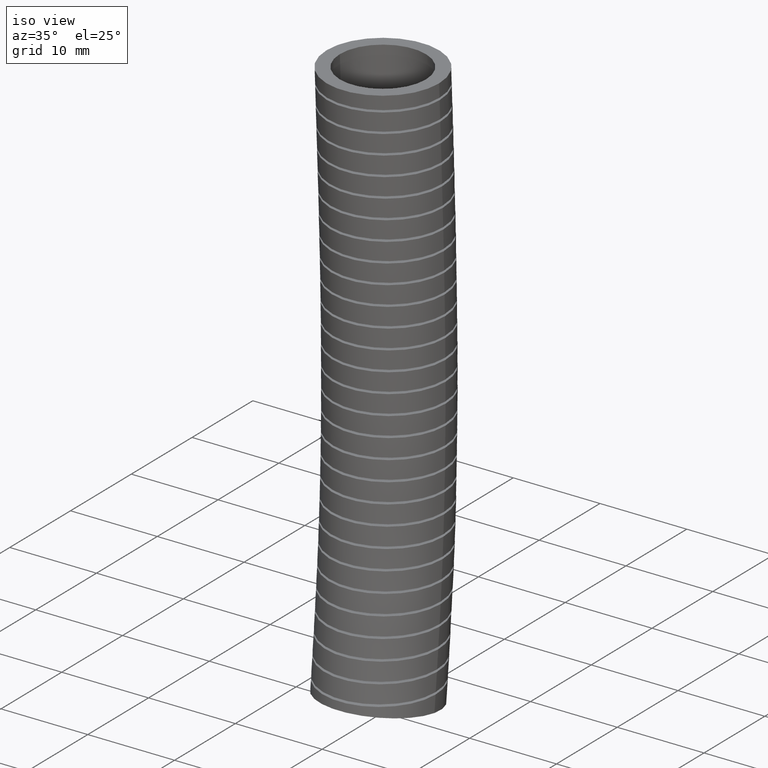
[diagram: clean part render]
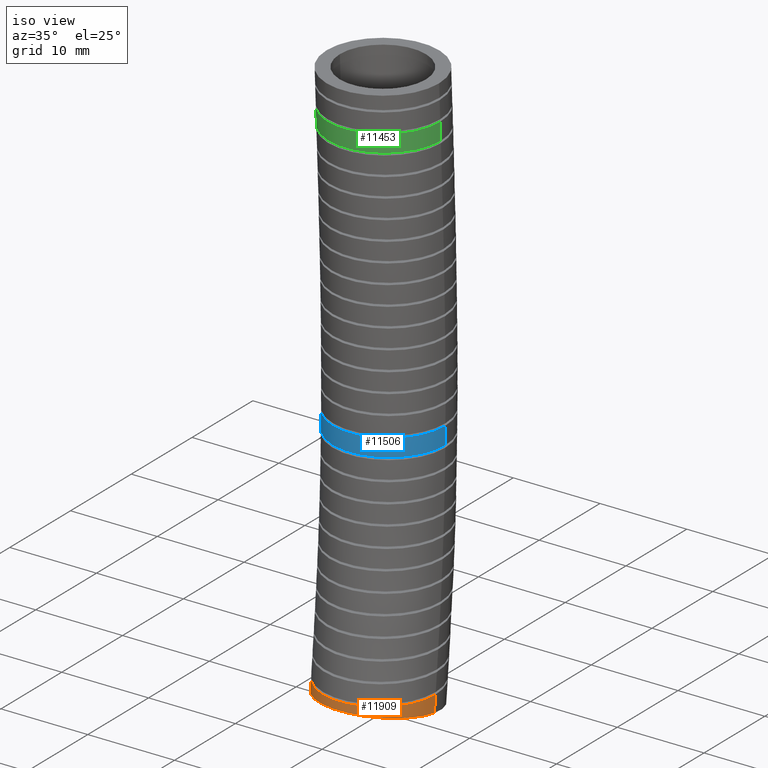
[diagram: same view with three faces highlighted in distinct colors, each labeled with its STEP entity id]
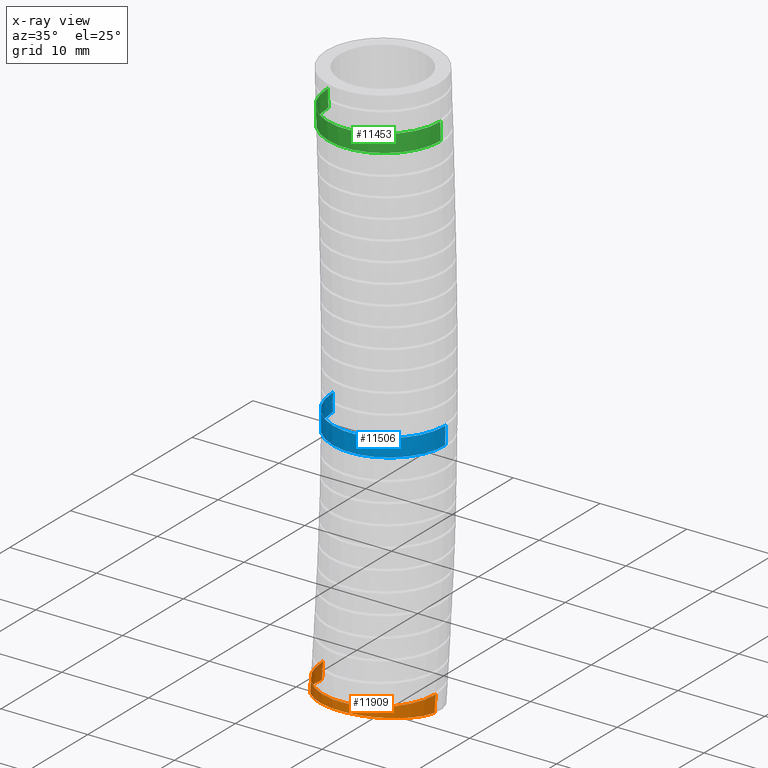
[diagram: x-ray of the same camera — body ghosted, the three highlighted faces saturated]
A machine part, iso view with three faces highlighted in distinct colors.
The next image is the same camera in x-ray (body ghosted, the three faces saturated) — at least one of them is partly hidden behind the body in this view.
Their STEP definitions:

[orange] entity #11909 — the highlighted face is a freeform B-spline surface patch.
#3720 = CARTESIAN_POINT ( 'NONE',  ( -0.2550000000000000600, -0.02281180567307332700, -2.496989538721974300 ) ) ;
#3801 = CARTESIAN_POINT ( 'NONE',  ( -0.2550000000000000000, -0.02759958849167231900, -2.545663348084823900 ) ) ;
#3802 = CARTESIAN_POINT ( 'NONE',  ( -0.2550000000000000000, -0.02519917698334464600, -2.521326696169647900 ) ) ;
#3803 = CARTESIAN_POINT ( 'NONE',  ( -0.2550000000000000600, -0.02281180567307332700, -2.496989538721974300 ) ) ;
#3804 = CARTESIAN_POINT ( 'NONE',  ( -0.2550000000000000600, -0.03000000000000007900, -2.570000000000000300 ) ) ;
#3805 = B_SPLINE_CURVE_WITH_KNOTS ( 'NONE', 3,
 ( #3803, #3802, #3801, #3877 ),
 .UNSPECIFIED., .F., .F.,
 ( 4, 4 ),
 ( 0.9714957288797023700, 1.000000000000000000 ),
 .UNSPECIFIED. ) ;
#3877 = CARTESIAN_POINT ( 'NONE',  ( -0.2550000000000000600, -0.03000000000000007900, -2.570000000000000300 ) ) ;
#4402 = B_SPLINE_CURVE_WITH_KNOTS ( 'NONE', 3,
 ( #4569, #4568, #4567, #4566 ),
 .UNSPECIFIED., .F., .F.,
 ( 4, 4 ),
 ( 0.9714957288797019300, 1.000000000000000000 ),
 .UNSPECIFIED. ) ;
#4566 = CARTESIAN_POINT ( 'NONE',  ( 0.2550000000000000000, -0.03000000000000002300, -2.570000000000000300 ) ) ;
#4567 = CARTESIAN_POINT ( 'NONE',  ( 0.2550000000000000000, -0.02759958849167231500, -2.545663348084823400 ) ) ;
#4568 = CARTESIAN_POINT ( 'NONE',  ( 0.2550000000000000000, -0.02519917698334460000, -2.521326696169647000 ) ) ;
#4569 = CARTESIAN_POINT ( 'NONE',  ( 0.2550000000000000000, -0.02281180567307333100, -2.496989538721972900 ) ) ;
#4629 = DIRECTION ( 'NONE',  ( 1.000000000000000000, 0.0000000000000000000, 0.0000000000000000000 ) ) ;
#4630 = DIRECTION ( 'NONE',  ( 0.0000000000000000000, 0.1455525941150913600, 0.9893505154121908800 ) ) ;
#4631 = CARTESIAN_POINT ( 'NONE',  ( 0.0000000000000000000, -0.03000000000000002300, -2.570000000000000300 ) ) ;
#4632 = AXIS2_PLACEMENT_3D ( 'NONE', #4631, #4630, #4629 ) ;
#4633 = CIRCLE ( 'NONE', #4632, 0.2550000000000000000 ) ;
#5591 = FACE_OUTER_BOUND ( 'NONE', #11910, .T. ) ;
#5799 = CARTESIAN_POINT ( 'NONE',  ( 0.2550000000000000000, -0.01126751581493338000, -2.380080086044865000 ) ) ;
#5800 = CARTESIAN_POINT ( 'NONE',  ( 0.2550000000000000000, 0.02578591590436005500, -2.004412636156899000 ) ) ;
#5801 = CARTESIAN_POINT ( 'NONE',  ( 0.2550000000000001700, 0.05488873695197821200, -1.148486533150796300 ) ) ;
#5802 = CARTESIAN_POINT ( 'NONE',  ( 0.2550000000000000000, 0.02298048079048191000, -0.4808413197099051800 ) ) ;
#5803 = CARTESIAN_POINT ( 'NONE',  ( 0.2550000000000000000, 0.0000000000000000000, 0.0000000000000000000 ) ) ;
#5804 = CARTESIAN_POINT ( 'NONE',  ( 0.2550000000000000000, 0.5652806686658972100, -1.166484199753219600 ) ) ;
#5805 = CARTESIAN_POINT ( 'NONE',  ( 0.2550000000000000000, 0.5331445723641462500, -0.4883764727230331400 ) ) ;
#5806 = CARTESIAN_POINT ( 'NONE',  ( 0.2550000000000000000, 0.5100000000000000100, 0.0000000000000000000 ) ) ;
#5807 = CARTESIAN_POINT ( 'NONE',  ( -0.2549999999999998900, 0.4745687628602173200, -2.644231822998695900 ) ) ;
#5808 = CARTESIAN_POINT ( 'NONE',  ( -0.2549999999999998400, 0.4942108475508936700, -2.446087519929936800 ) ) ;
#5809 = CARTESIAN_POINT ( 'NONE',  ( -0.2550000000000000000, 0.5330634971365140200, -2.054151974607116000 ) ) ;
#5810 = CARTESIAN_POINT ( 'NONE',  ( -0.2550000000000000000, 0.5652806686658972100, -1.166484199753219600 ) ) ;
#5811 = CARTESIAN_POINT ( 'NONE',  ( -0.2549999999999999500, 0.5331445723641462500, -0.4883764727230331400 ) ) ;
#5812 =( BOUNDED_SURFACE ( )  B_SPLINE_SURFACE ( 3, 3, ( 
 ( #5803, #5802, #5801, #5800, #5799, #5887 ),
 ( #5886, #5885, #5884, #5883, #5882, #5881 ),
 ( #5893, #5892, #5891, #5890, #5889, #5888 ),
 ( #5913, #5912, #5911, #5910, #5909, #5908 ),
 ( #5907, #5811, #5810, #5809, #5808, #5807 ),
 ( #5806, #5805, #5804, #5955, #5954, #5953 ),
 ( #5952, #5951, #5950, #5949, #5948, #5947 ) ),
 .UNSPECIFIED., .F., .F., .T. ) 
 B_SPLINE_SURFACE_WITH_KNOTS ( ( 4, 3, 4 ),
 ( 4, 1, 1, 4 ),
 ( 0.0000000000000000000, 0.5000000000000000000, 1.000000000000000000 ),
 ( 0.0000000000000000000, 0.5599999999999998300, 0.7775565539011162200, 1.000000000000000000 ),
 .UNSPECIFIED. ) 
 GEOMETRIC_REPRESENTATION_ITEM ( )  RATIONAL_B_SPLINE_SURFACE ( (
 ( 1.000000000000000000, 1.000000000000000000, 0.9999999999999998900, 1.000000000000000000, 1.000000000000000000, 1.000000000000000000),
 ( 0.3333333333333333100, 0.3333333333333333100, 0.3333333333333332600, 0.3333333333333332600, 0.3333333333333333700, 0.3333333333333333100),
 ( 0.3333333333333333100, 0.3333333333333333100, 0.3333333333333332600, 0.3333333333333332600, 0.3333333333333333700, 0.3333333333333333100),
 ( 1.000000000000000000, 1.000000000000000000, 0.9999999999999998900, 1.000000000000000000, 1.000000000000000000, 1.000000000000000000),
 ( 0.3333333333333333100, 0.3333333333333333100, 0.3333333333333332600, 0.3333333333333332600, 0.3333333333333333700, 0.3333333333333333100),
 ( 0.3333333333333333100, 0.3333333333333333100, 0.3333333333333332600, 0.3333333333333332600, 0.3333333333333333700, 0.3333333333333333100),
 ( 1.000000000000000000, 1.000000000000000000, 0.9999999999999998900, 1.000000000000000000, 1.000000000000000000, 1.000000000000000000) ) ) 
 REPRESENTATION_ITEM ( '' )  SURFACE ( )  );
#5836 = CARTESIAN_POINT ( 'NONE',  ( -0.2420396963479557500, -0.1050958133328880900, -2.496989538721975200 ) ) ;
#5837 = CARTESIAN_POINT ( 'NONE',  ( -0.2324684961107576200, -0.1283352130064512300, -2.496989538721974700 ) ) ;
#5838 = CARTESIAN_POINT ( 'NONE',  ( -0.2288603972199918500, -0.1360026545973514700, -2.496989538721971600 ) ) ;
#5839 = CARTESIAN_POINT ( 'NONE',  ( -0.2209848376923737300, -0.1508010090460092900, -2.496989538721971600 ) ) ;
#5840 = CARTESIAN_POINT ( 'NONE',  ( -0.2167083075657414400, -0.1579635351931962500, -2.496989538721975200 ) ) ;
#5841 = CARTESIAN_POINT ( 'NONE',  ( -0.2028827533738474800, -0.1787553330990921700, -2.496989538721974700 ) ) ;
#5842 = CARTESIAN_POINT ( 'NONE',  ( -0.1923283756268383300, -0.1917150432491230000, -2.496989538721974700 ) ) ;
#5843 = CARTESIAN_POINT ( 'NONE',  ( -0.1685367291367193300, -0.2156265291495232400, -2.496989538721974300 ) ) ;
#5844 = CARTESIAN_POINT ( 'NONE',  ( -0.1556605631461857000, -0.2262228065243493700, -2.496989538721973400 ) ) ;
#5845 = CARTESIAN_POINT ( 'NONE',  ( -0.1349282731847482600, -0.2401507900304761000, -2.496989538721973400 ) ) ;
#5846 = CARTESIAN_POINT ( 'NONE',  ( -0.1277794319083721300, -0.2444633025988189300, -2.496989538721974300 ) ) ;
#5847 = CARTESIAN_POINT ( 'NONE',  ( -0.1129933751177438100, -0.2524110870792573000, -2.496989538721974300 ) ) ;
#5848 = CARTESIAN_POINT ( 'NONE',  ( -0.1053442757403906800, -0.2560453553899294500, -2.496989538721974700 ) ) ;
#5876 = CARTESIAN_POINT ( 'NONE',  ( 0.2464994555981670500, -0.08888001045868507100, -2.496989538721974300 ) ) ;
#5877 = CARTESIAN_POINT ( 'NONE',  ( 0.2485113280893159700, -0.08078303330386743500, -2.496989538721974300 ) ) ;
#5878 = CARTESIAN_POINT ( 'NONE',  ( 0.2533528138736739800, -0.05628888977460976700, -2.496989538721972900 ) ) ;
#5879 = CARTESIAN_POINT ( 'NONE',  ( 0.2549999999999998900, -0.03969050315933785700, -2.496989538721973400 ) ) ;
#5880 = CARTESIAN_POINT ( 'NONE',  ( 0.2550000000000000000, -0.02281180567307333100, -2.496989538721972900 ) ) ;
#5881 = CARTESIAN_POINT ( 'NONE',  ( 0.2549999999999999500, -0.5345687628602172600, -2.495768177001302000 ) ) ;
#5882 = CARTESIAN_POINT ( 'NONE',  ( 0.2549999999999998900, -0.5167458791807605400, -2.314072652159792300 ) ) ;
#5883 = CARTESIAN_POINT ( 'NONE',  ( 0.2550000000000000000, -0.4814916653277938100, -1.954673297706683400 ) ) ;
#5884 = CARTESIAN_POINT ( 'NONE',  ( 0.2550000000000000000, -0.4555031947619411200, -1.130488866548372800 ) ) ;
#5885 = CARTESIAN_POINT ( 'NONE',  ( 0.2550000000000000000, -0.4871836107831824000, -0.4733061666967772200 ) ) ;
#5886 = CARTESIAN_POINT ( 'NONE',  ( 0.2550000000000000000, -0.5100000000000000100, 0.0000000000000000000 ) ) ;
#5887 = CARTESIAN_POINT ( 'NONE',  ( 0.2550000000000000000, -0.03000000000000002700, -2.569999999999999800 ) ) ;
#5888 = CARTESIAN_POINT ( 'NONE',  ( -0.2550000000000000000, -0.5345687628602172600, -2.495768177001302000 ) ) ;
#5889 = CARTESIAN_POINT ( 'NONE',  ( -0.2549999999999999500, -0.5167458791807605400, -2.314072652159792300 ) ) ;
#5890 = CARTESIAN_POINT ( 'NONE',  ( -0.2550000000000001200, -0.4814916653277938100, -1.954673297706683400 ) ) ;
#5891 = CARTESIAN_POINT ( 'NONE',  ( -0.2550000000000001200, -0.4555031947619411200, -1.130488866548372800 ) ) ;
#5892 = CARTESIAN_POINT ( 'NONE',  ( -0.2550000000000000600, -0.4871836107831824000, -0.4733061666967772200 ) ) ;
#5893 = CARTESIAN_POINT ( 'NONE',  ( -0.2550000000000000600, -0.5100000000000000100, 0.0000000000000000000 ) ) ;
#5894 = B_SPLINE_CURVE_WITH_KNOTS ( 'NONE', 3,
 ( #5880, #5879, #5878, #5877, #5876, #5906, #5905, #5904, #5903, #5902, #5901, #5900, #5899, #5898, #5897, #5924, #5923, #5922, #5921, #5920, #5919, #5918, #5917, #5916, #5915, #5914, #5848, #5847, #5846, #5845, #5844, #5843, #5842, #5841, #5840, #5839, #5838, #5837, #5836, #5930, #5929, #5928, #5927 ),
 .UNSPECIFIED., .F., .F.,
 ( 4, 2, 2, 2, 2, 2, 2, 2, 1, 2, 2, 2, 2, 2, 2, 2, 2, 2, 2, 2, 2, 4 ),
 ( 0.0000000000000000000, 0.001267928346763758300, 0.001901892520145638200, 0.002535856693527517900, 0.003803785040291276500, 0.005071713387055035000, 0.006339641733818793100, 0.006973605907200672100, 0.007607570080582552000, 0.008241534253964431100, 0.008875498427346310100, 0.01014342677411006700, 0.01141135512087382500, 0.01267928346763758300, 0.01331324764101946200, 0.01394721181440134100, 0.01521514016116510400, 0.01648306850792886600, 0.01711703268131074500, 0.01775099685469262400, 0.01901892520145637500, 0.02028685354822013000 ),
 .UNSPECIFIED. ) ;
#5895 = CARTESIAN_POINT ( 'NONE',  ( 0.2550000000000000000, -0.03000000000000002300, -2.570000000000000300 ) ) ;
#5896 = CARTESIAN_POINT ( 'NONE',  ( 0.2550000000000000000, -0.02281180567307333100, -2.496989538721972900 ) ) ;
#5897 = CARTESIAN_POINT ( 'NONE',  ( 0.1277127929271862900, -0.2445009401747990900, -2.496989538721972000 ) ) ;
#5898 = CARTESIAN_POINT ( 'NONE',  ( 0.1349645543904538800, -0.2401307814535181800, -2.496989538721971600 ) ) ;
#5899 = CARTESIAN_POINT ( 'NONE',  ( 0.1558637933885026500, -0.2260774587918841800, -2.496989538721972000 ) ) ;
#5900 = CARTESIAN_POINT ( 'NONE',  ( 0.1686956228072366000, -0.2154694032589310500, -2.496989538721971600 ) ) ;
#5901 = CARTESIAN_POINT ( 'NONE',  ( 0.1922086722299143300, -0.1918327771794909600, -2.496989538721972500 ) ) ;
#5902 = CARTESIAN_POINT ( 'NONE',  ( 0.2029658504311457100, -0.1786513109225887600, -2.496989538721974300 ) ) ;
#5903 = CARTESIAN_POINT ( 'NONE',  ( 0.2214316680713726300, -0.1508390577387384900, -2.496989538721974300 ) ) ;
#5904 = CARTESIAN_POINT ( 'NONE',  ( 0.2292458210920576300, -0.1361465971429140200, -2.496989538721974700 ) ) ;
#5905 = CARTESIAN_POINT ( 'NONE',  ( 0.2388207272997422400, -0.1129183237902457900, -2.496989538721973400 ) ) ;
#5906 = CARTESIAN_POINT ( 'NONE',  ( 0.2416614099269883100, -0.1049353906681005400, -2.496989538721972900 ) ) ;
#5907 = CARTESIAN_POINT ( 'NONE',  ( -0.2549999999999999500, 0.5100000000000000100, 0.0000000000000000000 ) ) ;
#5908 = CARTESIAN_POINT ( 'NONE',  ( -0.2550000000000000000, -0.02999999999999999500, -2.569999999999999800 ) ) ;
#5909 = CARTESIAN_POINT ( 'NONE',  ( -0.2550000000000000000, -0.01126751581493335000, -2.380080086044865000 ) ) ;
#5910 = CARTESIAN_POINT ( 'NONE',  ( -0.2550000000000000000, 0.02578591590436009000, -2.004412636156899000 ) ) ;
#5911 = CARTESIAN_POINT ( 'NONE',  ( -0.2550000000000001700, 0.05488873695197826100, -1.148486533150796300 ) ) ;
#5912 = CARTESIAN_POINT ( 'NONE',  ( -0.2550000000000000000, 0.02298048079048194500, -0.4808413197099051800 ) ) ;
#5913 = CARTESIAN_POINT ( 'NONE',  ( -0.2550000000000000000, 3.122849337825751200E-017, 0.0000000000000000000 ) ) ;
#5914 = CARTESIAN_POINT ( 'NONE',  ( -0.08216602915957443900, -0.2656854457826044500, -2.496989538721974300 ) ) ;
#5915 = CARTESIAN_POINT ( 'NONE',  ( -0.06624683273223086500, -0.2705355621958820400, -2.496989538721972000 ) ) ;
#5916 = CARTESIAN_POINT ( 'NONE',  ( -0.03347758788374163200, -0.2770934173794099000, -2.496989538721972500 ) ) ;
#5917 = CARTESIAN_POINT ( 'NONE',  ( -0.01655633652284320400, -0.2787619232588294200, -2.496989538721975200 ) ) ;
#5918 = CARTESIAN_POINT ( 'NONE',  ( 0.01676412825550491600, -0.2787482972910827500, -2.496989538721975200 ) ) ;
#5919 = CARTESIAN_POINT ( 'NONE',  ( 0.03334385801552559900, -0.2771186998316878500, -2.496989538721972900 ) ) ;
#5920 = CARTESIAN_POINT ( 'NONE',  ( 0.05808916194142384900, -0.2721688321633608000, -2.496989538721972500 ) ) ;
#5921 = CARTESIAN_POINT ( 'NONE',  ( 0.06627559885608454200, -0.2701016993039792600, -2.496989538721972500 ) ) ;
#5922 = CARTESIAN_POINT ( 'NONE',  ( 0.08225488448508258600, -0.2652191341160629600, -2.496989538721974300 ) ) ;
#5923 = CARTESIAN_POINT ( 'NONE',  ( 0.09792224169194070600, -0.2595730204018028600, -2.496989538721970700 ) ) ;
#5924 = CARTESIAN_POINT ( 'NONE',  ( 0.1129738825421758400, -0.2524197361850350500, -2.496989538721972000 ) ) ;
#5927 = CARTESIAN_POINT ( 'NONE',  ( -0.2550000000000000600, -0.02281180567307332700, -2.496989538721974300 ) ) ;
#5928 = CARTESIAN_POINT ( 'NONE',  ( -0.2550000000000000600, -0.03948457364051818200, -2.496989538721973400 ) ) ;
#5929 = CARTESIAN_POINT ( 'NONE',  ( -0.2533390810864987200, -0.05641615612181939700, -2.496989538721972900 ) ) ;
#5930 = CARTESIAN_POINT ( 'NONE',  ( -0.2468439115357345100, -0.08916046883525191600, -2.496989538721972900 ) ) ;
#5947 = CARTESIAN_POINT ( 'NONE',  ( 0.2550000000000000000, -0.03000000000000002700, -2.569999999999999800 ) ) ;
#5948 = CARTESIAN_POINT ( 'NONE',  ( 0.2550000000000000000, -0.01126751581493338000, -2.380080086044865000 ) ) ;
#5949 = CARTESIAN_POINT ( 'NONE',  ( 0.2550000000000000000, 0.02578591590436005500, -2.004412636156899000 ) ) ;
#5950 = CARTESIAN_POINT ( 'NONE',  ( 0.2550000000000001700, 0.05488873695197821200, -1.148486533150796300 ) ) ;
#5951 = CARTESIAN_POINT ( 'NONE',  ( 0.2550000000000000000, 0.02298048079048191000, -0.4808413197099051800 ) ) ;
#5952 = CARTESIAN_POINT ( 'NONE',  ( 0.2550000000000000000, 0.0000000000000000000, 0.0000000000000000000 ) ) ;
#5953 = CARTESIAN_POINT ( 'NONE',  ( 0.2549999999999999500, 0.4745687628602173200, -2.644231822998695900 ) ) ;
#5954 = CARTESIAN_POINT ( 'NONE',  ( 0.2549999999999998900, 0.4942108475508936700, -2.446087519929936800 ) ) ;
#5955 = CARTESIAN_POINT ( 'NONE',  ( 0.2550000000000000000, 0.5330634971365140200, -2.054151974607116000 ) ) ;
#11773 = VERTEX_POINT ( 'NONE', #3720 ) ;
#11776 = ORIENTED_EDGE ( 'NONE', *, *, #11777, .T. ) ;
#11777 = EDGE_CURVE ( 'NONE', #11773, #11778, #3805, .T. ) ;
#11778 = VERTEX_POINT ( 'NONE', #3804 ) ;
#11821 = EDGE_CURVE ( 'NONE', #11913, #11914, #4402, .T. ) ;
#11833 = ORIENTED_EDGE ( 'NONE', *, *, #11834, .T. ) ;
#11834 = EDGE_CURVE ( 'NONE', #11778, #11914, #4633, .T. ) ;
#11909 = ADVANCED_FACE ( 'NONE', ( #5591 ), #5812, .T. ) ;
#11910 = EDGE_LOOP ( 'NONE', ( #11911, #11776, #11833, #11915 ) ) ;
#11911 = ORIENTED_EDGE ( 'NONE', *, *, #11912, .T. ) ;
#11912 = EDGE_CURVE ( 'NONE', #11913, #11773, #5894, .T. ) ;
#11913 = VERTEX_POINT ( 'NONE', #5896 ) ;
#11914 = VERTEX_POINT ( 'NONE', #5895 ) ;
#11915 = ORIENTED_EDGE ( 'NONE', *, *, #11821, .F. ) ;

[blue] entity #11506 — the highlighted face is a freeform B-spline surface patch.
#300 = CARTESIAN_POINT ( 'NONE',  ( 0.2550000000000000000, 0.5100000000000000100, 0.0000000000000000000 ) ) ;
#302 = CARTESIAN_POINT ( 'NONE',  ( 0.2550000000000000000, 0.5331445723641462500, -0.4883764727230331400 ) ) ;
#463 = CARTESIAN_POINT ( 'NONE',  ( -0.2549999999999999500, 0.5100000000000000100, 0.0000000000000000000 ) ) ;
#464 = CARTESIAN_POINT ( 'NONE',  ( -0.2550000000000000000, -0.02999999999999999500, -2.569999999999999800 ) ) ;
#465 = CARTESIAN_POINT ( 'NONE',  ( -0.2550000000000000000, -0.01126751581493335000, -2.380080086044865000 ) ) ;
#466 = CARTESIAN_POINT ( 'NONE',  ( -0.2550000000000000000, 0.02578591590436009000, -2.004412636156899000 ) ) ;
#467 = CARTESIAN_POINT ( 'NONE',  ( -0.2550000000000001700, 0.05488873695197826100, -1.148486533150796300 ) ) ;
#468 = CARTESIAN_POINT ( 'NONE',  ( -0.2550000000000000000, 0.02298048079048194500, -0.4808413197099051800 ) ) ;
#469 = CARTESIAN_POINT ( 'NONE',  ( -0.2550000000000000000, 3.122849337825751200E-017, 0.0000000000000000000 ) ) ;
#470 = CARTESIAN_POINT ( 'NONE',  ( -0.2550000000000000000, -0.5345687628602172600, -2.495768177001302000 ) ) ;
#471 = CARTESIAN_POINT ( 'NONE',  ( -0.2549999999999999500, -0.5167458791807605400, -2.314072652159792300 ) ) ;
#472 = CARTESIAN_POINT ( 'NONE',  ( -0.2550000000000001200, -0.4814916653277938100, -1.954673297706683400 ) ) ;
#473 = CARTESIAN_POINT ( 'NONE',  ( -0.2550000000000001200, -0.4555031947619411200, -1.130488866548372800 ) ) ;
#474 = CARTESIAN_POINT ( 'NONE',  ( -0.2550000000000000600, -0.4871836107831824000, -0.4733061666967772200 ) ) ;
#475 = CARTESIAN_POINT ( 'NONE',  ( -0.2550000000000000600, -0.5100000000000000100, 0.0000000000000000000 ) ) ;
#476 = CARTESIAN_POINT ( 'NONE',  ( 0.2549999999999999500, -0.5345687628602172600, -2.495768177001302000 ) ) ;
#477 = CARTESIAN_POINT ( 'NONE',  ( 0.2549999999999998900, -0.5167458791807605400, -2.314072652159792300 ) ) ;
#478 = CARTESIAN_POINT ( 'NONE',  ( 0.2550000000000000000, -0.4814916653277938100, -1.954673297706683400 ) ) ;
#479 = CARTESIAN_POINT ( 'NONE',  ( 0.2550000000000000000, -0.4555031947619411200, -1.130488866548372800 ) ) ;
#480 = CARTESIAN_POINT ( 'NONE',  ( 0.2550000000000000000, -0.4871836107831824000, -0.4733061666967772200 ) ) ;
#481 = CARTESIAN_POINT ( 'NONE',  ( 0.2550000000000000000, -0.5100000000000000100, 0.0000000000000000000 ) ) ;
#482 = CARTESIAN_POINT ( 'NONE',  ( 0.2550000000000000000, -0.03000000000000002700, -2.569999999999999800 ) ) ;
#483 = CARTESIAN_POINT ( 'NONE',  ( 0.2550000000000000000, -0.01126751581493338000, -2.380080086044865000 ) ) ;
#484 = CARTESIAN_POINT ( 'NONE',  ( 0.2550000000000000000, 0.02578591590436005500, -2.004412636156899000 ) ) ;
#485 = CARTESIAN_POINT ( 'NONE',  ( 0.2550000000000001700, 0.05488873695197821200, -1.148486533150796300 ) ) ;
#486 = CARTESIAN_POINT ( 'NONE',  ( 0.2550000000000000000, 0.02298048079048191000, -0.4808413197099051800 ) ) ;
#487 = CARTESIAN_POINT ( 'NONE',  ( 0.2550000000000000000, 0.0000000000000000000, 0.0000000000000000000 ) ) ;
#533 = FACE_OUTER_BOUND ( 'NONE', #11507, .T. ) ;
#575 =( BOUNDED_SURFACE ( )  B_SPLINE_SURFACE ( 3, 3, ( 
 ( #487, #486, #485, #484, #483, #482 ),
 ( #481, #480, #479, #478, #477, #476 ),
 ( #475, #474, #473, #472, #471, #470 ),
 ( #469, #468, #467, #466, #465, #464 ),
 ( #463, #14360, #14359, #14438, #14437, #14434 ),
 ( #300, #302, #701, #631, #771, #632 ),
 ( #728, #618, #617, #616, #703, #702 ) ),
 .UNSPECIFIED., .F., .F., .F. ) 
 B_SPLINE_SURFACE_WITH_KNOTS ( ( 4, 3, 4 ),
 ( 4, 1, 1, 4 ),
 ( 0.0000000000000000000, 0.5000000000000000000, 1.000000000000000000 ),
 ( 0.0000000000000000000, 0.5599999999999998300, 0.7775565539011162200, 1.000000000000000000 ),
 .UNSPECIFIED. ) 
 GEOMETRIC_REPRESENTATION_ITEM ( )  RATIONAL_B_SPLINE_SURFACE ( (
 ( 1.000000000000000000, 1.000000000000000000, 0.9999999999999998900, 1.000000000000000000, 1.000000000000000000, 1.000000000000000000),
 ( 0.3333333333333333100, 0.3333333333333333100, 0.3333333333333332600, 0.3333333333333332600, 0.3333333333333333700, 0.3333333333333333100),
 ( 0.3333333333333333100, 0.3333333333333333100, 0.3333333333333332600, 0.3333333333333332600, 0.3333333333333333700, 0.3333333333333333100),
 ( 1.000000000000000000, 1.000000000000000000, 0.9999999999999998900, 1.000000000000000000, 1.000000000000000000, 1.000000000000000000),
 ( 0.3333333333333333100, 0.3333333333333333100, 0.3333333333333332600, 0.3333333333333332600, 0.3333333333333333700, 0.3333333333333333100),
 ( 0.3333333333333333100, 0.3333333333333333100, 0.3333333333333332600, 0.3333333333333332600, 0.3333333333333333700, 0.3333333333333333100),
 ( 1.000000000000000000, 1.000000000000000000, 0.9999999999999998900, 1.000000000000000000, 1.000000000000000000, 1.000000000000000000) ) ) 
 REPRESENTATION_ITEM ( '' )  SURFACE ( )  );
#604 = CARTESIAN_POINT ( 'NONE',  ( -0.08239244870753924300, -0.2007461159364607500, -1.419280642817063200 ) ) ;
#605 = CARTESIAN_POINT ( 'NONE',  ( -0.06615902264893071300, -0.2056767472091264900, -1.419280642817063000 ) ) ;
#606 = CARTESIAN_POINT ( 'NONE',  ( -0.03348961036571629400, -0.2121779986780354400, -1.419280642817062600 ) ) ;
#607 = CARTESIAN_POINT ( 'NONE',  ( -0.01697285159439064500, -0.2138187010509962600, -1.419280642817063700 ) ) ;
#608 = CARTESIAN_POINT ( 'NONE',  ( 0.008077561798744420000, -0.2138454473763506700, -1.419280642817064300 ) ) ;
#609 = CARTESIAN_POINT ( 'NONE',  ( 0.01651770640171092500, -0.2134390893549136000, -1.419280642817064800 ) ) ;
#610 = CARTESIAN_POINT ( 'NONE',  ( 0.03317014118582330100, -0.2118108043058410400, -1.419280642817064100 ) ) ;
#611 = CARTESIAN_POINT ( 'NONE',  ( 0.04140425985471932900, -0.2105934867084954800, -1.419280642817062300 ) ) ;
#612 = CARTESIAN_POINT ( 'NONE',  ( 0.06583658004575761200, -0.2057594142745913200, -1.419280642817063000 ) ) ;
#613 = CARTESIAN_POINT ( 'NONE',  ( 0.08176739529127749500, -0.2009721385247361400, -1.419280642817064300 ) ) ;
#614 = CARTESIAN_POINT ( 'NONE',  ( 0.1128843601975151000, -0.1881377090259372100, -1.419280642817063500 ) ) ;
#615 = CARTESIAN_POINT ( 'NONE',  ( 0.1275711373411792200, -0.1802942340314997400, -1.419280642817063700 ) ) ;
#616 = CARTESIAN_POINT ( 'NONE',  ( 0.2550000000000000000, 0.02578591590436005500, -2.004412636156899000 ) ) ;
#617 = CARTESIAN_POINT ( 'NONE',  ( 0.2550000000000001700, 0.05488873695197821200, -1.148486533150796300 ) ) ;
#618 = CARTESIAN_POINT ( 'NONE',  ( 0.2550000000000000000, 0.02298048079048191000, -0.4808413197099051800 ) ) ;
#631 = CARTESIAN_POINT ( 'NONE',  ( 0.2550000000000000000, 0.5330634971365140200, -2.054151974607116000 ) ) ;
#632 = CARTESIAN_POINT ( 'NONE',  ( 0.2549999999999999500, 0.4745687628602173200, -2.644231822998695900 ) ) ;
#687 = CARTESIAN_POINT ( 'NONE',  ( -0.2550000000000000600, 0.04087821874277031100, -1.419280642817063200 ) ) ;
#701 = CARTESIAN_POINT ( 'NONE',  ( 0.2550000000000000000, 0.5652806686658972100, -1.166484199753219600 ) ) ;
#702 = CARTESIAN_POINT ( 'NONE',  ( 0.2550000000000000000, -0.03000000000000002700, -2.569999999999999800 ) ) ;
#703 = CARTESIAN_POINT ( 'NONE',  ( 0.2550000000000000000, -0.01126751581493338000, -2.380080086044865000 ) ) ;
#704 = CARTESIAN_POINT ( 'NONE',  ( -0.2550000000000001700, 0.02418480060540849400, -1.419280642817063700 ) ) ;
#705 = CARTESIAN_POINT ( 'NONE',  ( -0.2533728860707530900, 0.007667314011162751900, -1.419280642817063000 ) ) ;
#706 = CARTESIAN_POINT ( 'NONE',  ( -0.2468833112449153900, -0.02501783758570642200, -1.419280642817063000 ) ) ;
#707 = CARTESIAN_POINT ( 'NONE',  ( -0.2419549980797849900, -0.04124763724638722000, -1.419280642817064100 ) ) ;
#708 = CARTESIAN_POINT ( 'NONE',  ( -0.2292231886770818000, -0.07195062235187446600, -1.419280642817064100 ) ) ;
#709 = CARTESIAN_POINT ( 'NONE',  ( -0.2214007302857463300, -0.08660682810520865800, -1.419280642817063700 ) ) ;
#710 = CARTESIAN_POINT ( 'NONE',  ( -0.2074235452823316700, -0.1075202018641704900, -1.419280642817064100 ) ) ;
#711 = CARTESIAN_POINT ( 'NONE',  ( -0.2023976495912517800, -0.1142874637574746400, -1.419280642817062600 ) ) ;
#712 = CARTESIAN_POINT ( 'NONE',  ( -0.1918131012035918500, -0.1271682597401787000, -1.419280642817062600 ) ) ;
#713 = CARTESIAN_POINT ( 'NONE',  ( -0.1806474121263370600, -0.1394705738114528100, -1.419280642817063700 ) ) ;
#714 = CARTESIAN_POINT ( 'NONE',  ( -0.1683355423055225300, -0.1506319510334411200, -1.419280642817064100 ) ) ;
#715 = CARTESIAN_POINT ( 'NONE',  ( -0.1554420336819805300, -0.1612143505097856100, -1.419280642817064100 ) ) ;
#716 = CARTESIAN_POINT ( 'NONE',  ( -0.1486646093099606400, -0.1662412188878415200, -1.419280642817062600 ) ) ;
#717 = CARTESIAN_POINT ( 'NONE',  ( -0.1277596270280455000, -0.1801972837558185900, -1.419280642817063000 ) ) ;
#718 = CARTESIAN_POINT ( 'NONE',  ( -0.1131045490318731100, -0.1880142183470615800, -1.419280642817062600 ) ) ;
#728 = CARTESIAN_POINT ( 'NONE',  ( 0.2550000000000000000, 0.0000000000000000000, 0.0000000000000000000 ) ) ;
#771 = CARTESIAN_POINT ( 'NONE',  ( 0.2549999999999998900, 0.4942108475508936700, -2.446087519929936800 ) ) ;
#781 = CARTESIAN_POINT ( 'NONE',  ( -0.2550000000000000600, 0.04087821874277031100, -1.419280642817063200 ) ) ;
#782 = B_SPLINE_CURVE_WITH_KNOTS ( 'NONE', 3,
 ( #814, #813, #812, #811, #810, #809, #808, #807, #806, #805, #804, #803, #802, #615, #614, #613, #612, #611, #610, #609, #608, #607, #606, #605, #604, #718, #717, #716, #715, #714, #713, #712, #711, #710, #709, #708, #707, #706, #705, #704, #687 ),
 .UNSPECIFIED., .F., .F.,
 ( 4, 2, 2, 2, 2, 2, 2, 2, 2, 2, 2, 2, 2, 2, 2, 1, 2, 2, 2, 2, 4 ),
 ( 0.0000000000000000000, 0.001278463956149378300, 0.002556927912298756600, 0.003835391868448134600, 0.005113855824597513200, 0.005753087802672200900, 0.006392319780746887800, 0.007670783736896258900, 0.008949247693045630000, 0.009588479671120317800, 0.01022771164919500000, 0.01150617560534437200, 0.01278463956149374400, 0.01406310351764311500, 0.01470233549571779900, 0.01534156747379248300, 0.01598079945186716900, 0.01662003142994185300, 0.01789849538609122500, 0.01917695934224059700, 0.02045542329838996600 ),
 .UNSPECIFIED. ) ;
#783 = CARTESIAN_POINT ( 'NONE',  ( 0.2550000000000000600, 0.04087821874632659900, -1.419280642625087500 ) ) ;
#802 = CARTESIAN_POINT ( 'NONE',  ( 0.1483033012023880800, -0.1664963976278820100, -1.419280642817064100 ) ) ;
#803 = CARTESIAN_POINT ( 'NONE',  ( 0.1549986285047345300, -0.1615547791213009200, -1.419280642817062300 ) ) ;
#804 = CARTESIAN_POINT ( 'NONE',  ( 0.1679487813221848300, -0.1509714238933397600, -1.419280642817062100 ) ) ;
#805 = CARTESIAN_POINT ( 'NONE',  ( 0.1742210712397216600, -0.1453065712263897100, -1.419280642817062600 ) ) ;
#806 = CARTESIAN_POINT ( 'NONE',  ( 0.1919688306692430300, -0.1276132728318518100, -1.419280642817063000 ) ) ;
#807 = CARTESIAN_POINT ( 'NONE',  ( 0.2025190267049683500, -0.1147978052635404800, -1.419280642817064800 ) ) ;
#808 = CARTESIAN_POINT ( 'NONE',  ( 0.2210798620257302900, -0.08714588424423477800, -1.419280642817064800 ) ) ;
#809 = CARTESIAN_POINT ( 'NONE',  ( 0.2291033492466915400, -0.07219425147506462700, -1.419280642817063200 ) ) ;
#810 = CARTESIAN_POINT ( 'NONE',  ( 0.2418723656069314800, -0.04149155815477095100, -1.419280642817063000 ) ) ;
#811 = CARTESIAN_POINT ( 'NONE',  ( 0.2467306881092331300, -0.02560894938819612700, -1.419280642817062100 ) ) ;
#812 = CARTESIAN_POINT ( 'NONE',  ( 0.2533229938409398100, 0.007243844242308156300, -1.419280642817062100 ) ) ;
#813 = CARTESIAN_POINT ( 'NONE',  ( 0.2550000000000000600, 0.02404230436934986000, -1.419280642625087000 ) ) ;
#814 = CARTESIAN_POINT ( 'NONE',  ( 0.2550000000000000600, 0.04087821874632659900, -1.419280642625087500 ) ) ;
#2257 = CARTESIAN_POINT ( 'NONE',  ( 0.2550000000000000600, 0.03987418499005024300, -1.499273348703687600 ) ) ;
#2366 = B_SPLINE_CURVE_WITH_KNOTS ( 'NONE', 3,
 ( #2384, #2383, #2382, #2373, #2372 ),
 .UNSPECIFIED., .F., .F.,
 ( 4, 1, 4 ),
 ( 0.5513831279414677100, 0.5599999999999998300, 0.5825097539705237400 ),
 .UNSPECIFIED. ) ;
#2372 = CARTESIAN_POINT ( 'NONE',  ( 0.2550000000000000600, 0.03987418499005024300, -1.499273348703687600 ) ) ;
#2373 = CARTESIAN_POINT ( 'NONE',  ( 0.2550000000000000000, 0.04018078484700137600, -1.479993152422150800 ) ) ;
#2382 = CARTESIAN_POINT ( 'NONE',  ( 0.2550000000000000000, 0.04053901023887547500, -1.453329829933214000 ) ) ;
#2383 = CARTESIAN_POINT ( 'NONE',  ( 0.2550000000000000000, 0.04080983911517471800, -1.426663119322526500 ) ) ;
#2384 = CARTESIAN_POINT ( 'NONE',  ( 0.2550000000000000600, 0.04087821874632659900, -1.419280642625087500 ) ) ;
#2548 = CARTESIAN_POINT ( 'NONE',  ( 0.2024823416608111400, -0.1158659972771023400, -1.499273348519599900 ) ) ;
#2549 = CARTESIAN_POINT ( 'NONE',  ( 0.1919196910805400200, -0.1286752144980461400, -1.499273348519599900 ) ) ;
#2550 = CARTESIAN_POINT ( 'NONE',  ( 0.1683563645374013500, -0.1521677779526388900, -1.499273348519600100 ) ) ;
#2551 = CARTESIAN_POINT ( 'NONE',  ( 0.1552177282401833200, -0.1629121362394090900, -1.499273348519601900 ) ) ;
#2552 = CARTESIAN_POINT ( 'NONE',  ( 0.1275134518827923100, -0.1813460306996191600, -1.499273348519601300 ) ) ;
#2553 = CARTESIAN_POINT ( 'NONE',  ( 0.1128635421651503600, -0.1891566886934994700, -1.499273348519600100 ) ) ;
#2554 = CARTESIAN_POINT ( 'NONE',  ( 0.08967371862526180000, -0.1987309801871641700, -1.499273348519600100 ) ) ;
#2555 = CARTESIAN_POINT ( 'NONE',  ( 0.08171224115932640400, -0.2015669052467834500, -1.499273348519601300 ) ) ;
#2556 = CARTESIAN_POINT ( 'NONE',  ( 0.06571827375325532700, -0.2063913729655188800, -1.499273348519601700 ) ) ;
#2557 = CARTESIAN_POINT ( 'NONE',  ( 0.05764816152616537800, -0.2083983807523544200, -1.499273348519601300 ) ) ;
#2558 = CARTESIAN_POINT ( 'NONE',  ( 0.03322265876329194600, -0.2132271072995931300, -1.499273348519600800 ) ) ;
#2559 = CARTESIAN_POINT ( 'NONE',  ( 0.01659793542310693300, -0.2148680595356293500, -1.499273348519601300 ) ) ;
#2560 = CARTESIAN_POINT ( 'NONE',  ( -0.01701379562580144700, -0.2148406820529441300, -1.499273348519601300 ) ) ;
#2561 = CARTESIAN_POINT ( 'NONE',  ( -0.03355668308925916600, -0.2131837836847645400, -1.499273348519601700 ) ) ;
#2575 = CARTESIAN_POINT ( 'NONE',  ( -0.2550000000000000600, 0.03987418499590510100, -1.499273348519601000 ) ) ;
#2576 = CARTESIAN_POINT ( 'NONE',  ( -0.2550000000000000600, 0.04018078484865079300, -1.479993152299383700 ) ) ;
#2577 = CARTESIAN_POINT ( 'NONE',  ( -0.2550000000000000600, 0.04053901023863932400, -1.453329829935809900 ) ) ;
#2578 = CARTESIAN_POINT ( 'NONE',  ( -0.2550000000000000000, 0.04080983911387486800, -1.426663119450517000 ) ) ;
#2579 = CARTESIAN_POINT ( 'NONE',  ( -0.2550000000000000600, 0.04087821874277031100, -1.419280642817063200 ) ) ;
#2582 = CARTESIAN_POINT ( 'NONE',  ( -0.05799021829891917000, -0.2083190451410597300, -1.499273348519601300 ) ) ;
#2583 = CARTESIAN_POINT ( 'NONE',  ( -0.06607079967901920100, -0.2062979989303976900, -1.499273348519601000 ) ) ;
#2584 = CARTESIAN_POINT ( 'NONE',  ( -0.08210076650235792500, -0.2014361330814507200, -1.499273348519600800 ) ) ;
#2585 = CARTESIAN_POINT ( 'NONE',  ( -0.09004809097129225200, -0.1985895399967130800, -1.499273348519599500 ) ) ;
#2586 = CARTESIAN_POINT ( 'NONE',  ( -0.1131673585474402400, -0.1890040853693583100, -1.499273348519599700 ) ) ;
#2587 = CARTESIAN_POINT ( 'NONE',  ( -0.1278050190540528400, -0.1811803716628145900, -1.499273348519599900 ) ) ;
#2588 = CARTESIAN_POINT ( 'NONE',  ( -0.1555336620342870900, -0.1626729482172042700, -1.499273348519599700 ) ) ;
#2589 = CARTESIAN_POINT ( 'NONE',  ( -0.1686399389618639900, -0.1519175385723949000, -1.499273348519599700 ) ) ;
#2590 = CARTESIAN_POINT ( 'NONE',  ( -0.1921409200632424300, -0.1284214616234614400, -1.499273348519600100 ) ) ;
#2591 = CARTESIAN_POINT ( 'NONE',  ( -0.2026995707447014100, -0.1155894803381077200, -1.499273348519599700 ) ) ;
#2592 = CARTESIAN_POINT ( 'NONE',  ( -0.2213595282916654400, -0.08769063686439433600, -1.499273348519599300 ) ) ;
#2593 = CARTESIAN_POINT ( 'NONE',  ( -0.2292493553066018700, -0.07290437836226237900, -1.499273348519600800 ) ) ;
#2594 = CARTESIAN_POINT ( 'NONE',  ( -0.2387818758929724800, -0.04990511463557099200, -1.499273348519601000 ) ) ;
#2595 = CARTESIAN_POINT ( 'NONE',  ( -0.2415866549643979300, -0.04208072098141418800, -1.499273348519598400 ) ) ;
#2596 = CARTESIAN_POINT ( 'NONE',  ( -0.2550000000000000600, 0.03987418499590510100, -1.499273348519601000 ) ) ;
#2597 = B_SPLINE_CURVE_WITH_KNOTS ( 'NONE', 3,
 ( #2579, #2578, #2577, #2576, #2575 ),
 .UNSPECIFIED., .F., .F.,
 ( 4, 1, 4 ),
 ( 0.5513831280161659600, 0.5599999999999998300, 0.5825097538988649500 ),
 .UNSPECIFIED. ) ;
#2651 = CARTESIAN_POINT ( 'NONE',  ( -0.2464380047210852900, -0.02611058385563524600, -1.499273348519598800 ) ) ;
#2652 = CARTESIAN_POINT ( 'NONE',  ( -0.2484920227522398600, -0.01791829105806692900, -1.499273348519600600 ) ) ;
#2653 = CARTESIAN_POINT ( 'NONE',  ( -0.2533854214555036900, 0.006716078541117630200, -1.499273348519599900 ) ) ;
#2654 = CARTESIAN_POINT ( 'NONE',  ( -0.2550000000000000000, 0.02324378696923351900, -1.499273348519601000 ) ) ;
#2655 = CARTESIAN_POINT ( 'NONE',  ( -0.2550000000000000600, 0.03987418499590510100, -1.499273348519601000 ) ) ;
#2656 = B_SPLINE_CURVE_WITH_KNOTS ( 'NONE', 3,
 ( #2655, #2654, #2653, #2652, #2651, #2595, #2594, #2593, #2592, #2591, #2590, #2589, #2588, #2587, #2586, #2585, #2584, #2583, #2582, #2561, #2560, #2559, #2558, #2557, #2556, #2555, #2554, #2553, #2552, #2551, #2550, #2549, #2548, #2675, #2674, #2673, #2672, #2671, #2670, #2669, #2668, #2667 ),
 .UNSPECIFIED., .F., .F.,
 ( 4, 2, 2, 2, 2, 2, 2, 2, 2, 2, 2, 2, 2, 2, 2, 2, 2, 2, 2, 2, 4 ),
 ( 0.02023998875655975600, 0.02150467247905927000, 0.02213701434030902700, 0.02276935620155878800, 0.02403403992405830200, 0.02529872364655781600, 0.02656340736905733100, 0.02782809109155685200, 0.02846043295280660900, 0.02909277481405636600, 0.03035745853655588000, 0.03162214225905539400, 0.03225448412030515500, 0.03288682598155491500, 0.03415150970405442200, 0.03541619342655394400, 0.03668087714905345100, 0.03731321901030321100, 0.03794556087155296500, 0.03921024459405247900, 0.04047492831655199300 ),
 .UNSPECIFIED. ) ;
#2667 = CARTESIAN_POINT ( 'NONE',  ( 0.2550000000000000600, 0.03987418499005024300, -1.499273348703687600 ) ) ;
#2668 = CARTESIAN_POINT ( 'NONE',  ( 0.2549999999999999500, 0.02303821655963436700, -1.499273348703687100 ) ) ;
#2669 = CARTESIAN_POINT ( 'NONE',  ( 0.2533454318803997600, 0.006377076044883572300, -1.499273348519599500 ) ) ;
#2670 = CARTESIAN_POINT ( 'NONE',  ( 0.2467400561050165400, -0.02659695504706885400, -1.499273348519599700 ) ) ;
#2671 = CARTESIAN_POINT ( 'NONE',  ( 0.2418465304828297200, -0.04256992153971220900, -1.499273348519599300 ) ) ;
#2672 = CARTESIAN_POINT ( 'NONE',  ( 0.2322820228068035200, -0.06555699771844228400, -1.499273348519599300 ) ) ;
#2673 = CARTESIAN_POINT ( 'NONE',  ( 0.2287177616832579400, -0.07306940733799481600, -1.499273348519599900 ) ) ;
#2674 = CARTESIAN_POINT ( 'NONE',  ( 0.2208229314054101500, -0.08778869698390554000, -1.499273348519600100 ) ) ;
#2675 = CARTESIAN_POINT ( 'NONE',  ( 0.2164661138010883800, -0.09503014028531456300, -1.499273348519599900 ) ) ;
#11506 = ADVANCED_FACE ( 'NONE', ( #533 ), #575, .T. ) ;
#11507 = EDGE_LOOP ( 'NONE', ( #11518, #11671, #11674, #11642 ) ) ;
#11518 = ORIENTED_EDGE ( 'NONE', *, *, #11519, .T. ) ;
#11519 = EDGE_CURVE ( 'NONE', #11520, #11521, #782, .T. ) ;
#11520 = VERTEX_POINT ( 'NONE', #783 ) ;
#11521 = VERTEX_POINT ( 'NONE', #781 ) ;
#11641 = VERTEX_POINT ( 'NONE', #2257 ) ;
#11642 = ORIENTED_EDGE ( 'NONE', *, *, #11643, .F. ) ;
#11643 = EDGE_CURVE ( 'NONE', #11520, #11641, #2366, .T. ) ;
#11671 = ORIENTED_EDGE ( 'NONE', *, *, #11672, .T. ) ;
#11672 = EDGE_CURVE ( 'NONE', #11521, #11673, #2597, .T. ) ;
#11673 = VERTEX_POINT ( 'NONE', #2596 ) ;
#11674 = ORIENTED_EDGE ( 'NONE', *, *, #11675, .T. ) ;
#11675 = EDGE_CURVE ( 'NONE', #11673, #11641, #2656, .T. ) ;
#14359 = CARTESIAN_POINT ( 'NONE',  ( -0.2550000000000000000, 0.5652806686658972100, -1.166484199753219600 ) ) ;
#14360 = CARTESIAN_POINT ( 'NONE',  ( -0.2549999999999999500, 0.5331445723641462500, -0.4883764727230331400 ) ) ;
#14434 = CARTESIAN_POINT ( 'NONE',  ( -0.2549999999999998900, 0.4745687628602173200, -2.644231822998695900 ) ) ;
#14437 = CARTESIAN_POINT ( 'NONE',  ( -0.2549999999999998400, 0.4942108475508936700, -2.446087519929936800 ) ) ;
#14438 = CARTESIAN_POINT ( 'NONE',  ( -0.2550000000000000000, 0.5330634971365140200, -2.054151974607116000 ) ) ;

[green] entity #11453 — the highlighted face is a freeform B-spline surface patch.
#41 = CARTESIAN_POINT ( 'NONE',  ( -0.2550000000000000000, -0.02999999999999999500, -2.569999999999999800 ) ) ;
#42 = CARTESIAN_POINT ( 'NONE',  ( -0.2550000000000000000, -0.01126751581493335000, -2.380080086044865000 ) ) ;
#43 = CARTESIAN_POINT ( 'NONE',  ( -0.2550000000000000000, 0.02578591590436009000, -2.004412636156899000 ) ) ;
#44 = CARTESIAN_POINT ( 'NONE',  ( -0.2550000000000001700, 0.05488873695197826100, -1.148486533150796300 ) ) ;
#45 = CARTESIAN_POINT ( 'NONE',  ( -0.2550000000000000000, 0.02298048079048194500, -0.4808413197099051800 ) ) ;
#46 = CARTESIAN_POINT ( 'NONE',  ( -0.2550000000000000000, 3.122849337825751200E-017, 0.0000000000000000000 ) ) ;
#47 = CARTESIAN_POINT ( 'NONE',  ( -0.2550000000000000000, -0.5345687628602172600, -2.495768177001302000 ) ) ;
#48 = CARTESIAN_POINT ( 'NONE',  ( -0.2549999999999999500, -0.5167458791807605400, -2.314072652159792300 ) ) ;
#49 = CARTESIAN_POINT ( 'NONE',  ( -0.2550000000000001200, -0.4814916653277938100, -1.954673297706683400 ) ) ;
#50 = CARTESIAN_POINT ( 'NONE',  ( -0.2550000000000001200, -0.4555031947619411200, -1.130488866548372800 ) ) ;
#51 = CARTESIAN_POINT ( 'NONE',  ( -0.2550000000000000600, -0.4871836107831824000, -0.4733061666967772200 ) ) ;
#52 = CARTESIAN_POINT ( 'NONE',  ( -0.2550000000000000600, -0.5100000000000000100, 0.0000000000000000000 ) ) ;
#53 = CARTESIAN_POINT ( 'NONE',  ( 0.2549999999999999500, -0.5345687628602172600, -2.495768177001302000 ) ) ;
#54 = CARTESIAN_POINT ( 'NONE',  ( 0.2549999999999998900, -0.5167458791807605400, -2.314072652159792300 ) ) ;
#55 = CARTESIAN_POINT ( 'NONE',  ( 0.2550000000000000000, -0.4814916653277938100, -1.954673297706683400 ) ) ;
#56 = CARTESIAN_POINT ( 'NONE',  ( 0.2550000000000000000, -0.4555031947619411200, -1.130488866548372800 ) ) ;
#57 = CARTESIAN_POINT ( 'NONE',  ( 0.2550000000000000000, -0.4871836107831824000, -0.4733061666967772200 ) ) ;
#58 = CARTESIAN_POINT ( 'NONE',  ( 0.2550000000000000000, -0.5100000000000000100, 0.0000000000000000000 ) ) ;
#72 = CARTESIAN_POINT ( 'NONE',  ( 0.2550000000000000000, -0.03000000000000002700, -2.569999999999999800 ) ) ;
#73 = CARTESIAN_POINT ( 'NONE',  ( 0.2550000000000000000, -0.01126751581493338000, -2.380080086044865000 ) ) ;
#74 = CARTESIAN_POINT ( 'NONE',  ( 0.2550000000000000000, 0.02578591590436005500, -2.004412636156899000 ) ) ;
#75 = CARTESIAN_POINT ( 'NONE',  ( 0.2550000000000001700, 0.05488873695197821200, -1.148486533150796300 ) ) ;
#86 = CARTESIAN_POINT ( 'NONE',  ( 0.2550000000000000000, 0.02298048079048191000, -0.4808413197099051800 ) ) ;
#87 = CARTESIAN_POINT ( 'NONE',  ( 0.2550000000000000000, 0.0000000000000000000, 0.0000000000000000000 ) ) ;
#88 = CARTESIAN_POINT ( 'NONE',  ( 0.2549999999999999500, 0.4745687628602173200, -2.644231822998695900 ) ) ;
#89 = CARTESIAN_POINT ( 'NONE',  ( 0.2549999999999998900, 0.4942108475508936700, -2.446087519929936800 ) ) ;
#90 = CARTESIAN_POINT ( 'NONE',  ( 0.2550000000000000000, 0.5330634971365140200, -2.054151974607116000 ) ) ;
#91 = CARTESIAN_POINT ( 'NONE',  ( 0.2550000000000000000, 0.5652806686658972100, -1.166484199753219600 ) ) ;
#92 = CARTESIAN_POINT ( 'NONE',  ( 0.2550000000000000000, 0.5331445723641462500, -0.4883764727230331400 ) ) ;
#93 = CARTESIAN_POINT ( 'NONE',  ( 0.2550000000000000000, 0.5100000000000000100, 0.0000000000000000000 ) ) ;
#94 = CARTESIAN_POINT ( 'NONE',  ( -0.2549999999999998900, 0.4745687628602173200, -2.644231822998695900 ) ) ;
#95 = CARTESIAN_POINT ( 'NONE',  ( -0.2549999999999998400, 0.4942108475508936700, -2.446087519929936800 ) ) ;
#96 = CARTESIAN_POINT ( 'NONE',  ( -0.2550000000000000000, 0.5330634971365140200, -2.054151974607116000 ) ) ;
#97 = CARTESIAN_POINT ( 'NONE',  ( -0.2550000000000000000, 0.5652806686658972100, -1.166484199753219600 ) ) ;
#98 = CARTESIAN_POINT ( 'NONE',  ( -0.2549999999999999500, 0.5331445723641462500, -0.4883764727230331400 ) ) ;
#99 = CARTESIAN_POINT ( 'NONE',  ( -0.2549999999999999500, 0.5100000000000000100, 0.0000000000000000000 ) ) ;
#292 = CARTESIAN_POINT ( 'NONE',  ( -0.2550000000000000000, 0.01133091143018917700, -0.2398011613771163200 ) ) ;
#572 = B_SPLINE_CURVE_WITH_KNOTS ( 'NONE', 3,
 ( #585, #584, #583, #582 ),
 .UNSPECIFIED., .F., .F.,
 ( 4, 4 ),
 ( 0.06207469496531120600, 0.09309479469167440700 ),
 .UNSPECIFIED. ) ;
#582 = CARTESIAN_POINT ( 'NONE',  ( -0.2550000000000000000, 0.01133091143018917700, -0.2398011613771163200 ) ) ;
#583 = CARTESIAN_POINT ( 'NONE',  ( -0.2550000000000000600, 0.01010125764274567800, -0.2131675800237623500 ) ) ;
#584 = CARTESIAN_POINT ( 'NONE',  ( -0.2550000000000000600, 0.008857174272555543000, -0.1865334392754063900 ) ) ;
#585 = CARTESIAN_POINT ( 'NONE',  ( -0.2550000000000000000, 0.007603469398277180200, -0.1598989255278989200 ) ) ;
#1385 = CARTESIAN_POINT ( 'NONE',  ( 0.2550000000000000000, 0.01133091143019122700, -0.2398011613771388900 ) ) ;
#2202 = CARTESIAN_POINT ( 'NONE',  ( -0.2468300500693789700, -0.05480798062014841800, -0.2398011613771167700 ) ) ;
#2203 = CARTESIAN_POINT ( 'NONE',  ( -0.2517033610140684800, -0.03036768282883067400, -0.2398011613771167100 ) ) ;
#2204 = CARTESIAN_POINT ( 'NONE',  ( -0.2529331493275043300, -0.02212863886036354000, -0.2398011613771164100 ) ) ;
#2205 = CARTESIAN_POINT ( 'NONE',  ( -0.2545840976355914800, -0.005461474814023687900, -0.2398011613771164600 ) ) ;
#2206 = CARTESIAN_POINT ( 'NONE',  ( -0.2550000000000000600, 0.002979911799252798100, -0.2398011613771164100 ) ) ;
#2207 = CARTESIAN_POINT ( 'NONE',  ( -0.2550000000000000000, 0.01133091143018917700, -0.2398011613771163200 ) ) ;
#2259 = CARTESIAN_POINT ( 'NONE',  ( -0.03323145772515369300, -0.2415824949827226900, -0.2398011613771163200 ) ) ;
#2260 = CARTESIAN_POINT ( 'NONE',  ( -0.04159021416671699500, -0.2403444122628436400, -0.2398011613771164100 ) ) ;
#2261 = CARTESIAN_POINT ( 'NONE',  ( -0.06623497283837963300, -0.2354373896507679600, -0.2398011613771164100 ) ) ;
#2262 = CARTESIAN_POINT ( 'NONE',  ( -0.08213175970586528200, -0.2306054090536451300, -0.2398011613771165200 ) ) ;
#2263 = CARTESIAN_POINT ( 'NONE',  ( -0.1128807560882974000, -0.2178832091038907200, -0.2398011613771164900 ) ) ;
#2264 = CARTESIAN_POINT ( 'NONE',  ( -0.1278573188788891800, -0.2098831911025223800, -0.2398011613771162400 ) ) ;
#2265 = CARTESIAN_POINT ( 'NONE',  ( -0.1555524236428017500, -0.1913750673278978900, -0.2398011613771163200 ) ) ;
#2266 = CARTESIAN_POINT ( 'NONE',  ( -0.1683979272150706000, -0.1808469127822822900, -0.2398011613771165200 ) ) ;
#2267 = CARTESIAN_POINT ( 'NONE',  ( -0.1861446414155565300, -0.1631200602149761900, -0.2398011613771166300 ) ) ;
#2268 = CARTESIAN_POINT ( 'NONE',  ( -0.1918258069835754600, -0.1568556136497206200, -0.2398011613771162700 ) ) ;
#2269 = CARTESIAN_POINT ( 'NONE',  ( -0.2024368353645034900, -0.1439263642717323600, -0.2398011613771163500 ) ) ;
#2270 = CARTESIAN_POINT ( 'NONE',  ( -0.2073936093868806700, -0.1372396611240891100, -0.2398011613771162400 ) ) ;
#2271 = CARTESIAN_POINT ( 'NONE',  ( -0.2212393787011790500, -0.1165271143740314900, -0.2398011613771162400 ) ) ;
#2272 = CARTESIAN_POINT ( 'NONE',  ( -0.2291253048267039600, -0.1018277818590132000, -0.2398011613771164600 ) ) ;
#2273 = CARTESIAN_POINT ( 'NONE',  ( -0.2420141449790033400, -0.07073510415476105800, -0.2398011613771163800 ) ) ;
#2275 = B_SPLINE_CURVE_WITH_KNOTS ( 'NONE', 3,
 ( #2207, #2206, #2205, #2204, #2203, #2202, #2273, #2272, #2271, #2270, #2269, #2268, #2267, #2266, #2265, #2264, #2263, #2262, #2261, #2260, #2259, #2316, #2315, #2314, #2313, #2312, #2311, #2310, #2309, #2308, #2307, #2306, #2305, #2304, #2303, #2295, #2294, #2293, #2292, #2291, #2290, #2289 ),
 .UNSPECIFIED., .F., .F.,
 ( 4, 2, 2, 2, 2, 2, 2, 2, 2, 2, 2, 2, 2, 2, 2, 2, 2, 2, 2, 2, 4 ),
 ( 0.02046459534852524900, 0.02110414947682145600, 0.02174370360511766700, 0.02302281186171008200, 0.02430192011830249700, 0.02494147424659870500, 0.02558102837489491200, 0.02686013663148733100, 0.02813924488807974900, 0.02941835314467216400, 0.03005790727296837200, 0.03069746140126457900, 0.03197656965785700100, 0.03325567791444941600, 0.03453478617104183100, 0.03581389442763424600, 0.03645344855593045400, 0.03709300268422666800, 0.03837211094081909000, 0.03965121919741150500, 0.04093032745400392000 ),
 .UNSPECIFIED. ) ;
#2289 = CARTESIAN_POINT ( 'NONE',  ( 0.2550000000000000000, 0.01133091143019122700, -0.2398011613771388900 ) ) ;
#2290 = CARTESIAN_POINT ( 'NONE',  ( 0.2550000000000000000, -0.005513466037400936400, -0.2398011613771390000 ) ) ;
#2291 = CARTESIAN_POINT ( 'NONE',  ( 0.2533252686330093600, -0.02223658922731947700, -0.2398011613771160700 ) ) ;
#2292 = CARTESIAN_POINT ( 'NONE',  ( 0.2468290716164595600, -0.05480989883565511000, -0.2398011613771160500 ) ) ;
#2293 = CARTESIAN_POINT ( 'NONE',  ( 0.2419866670362855500, -0.07081264167294304400, -0.2398011613771163800 ) ) ;
#2294 = CARTESIAN_POINT ( 'NONE',  ( 0.2291026405322336700, -0.1018711621883874200, -0.2398011613771163800 ) ) ;
#2295 = CARTESIAN_POINT ( 'NONE',  ( 0.2212393494957307100, -0.1165282440596955600, -0.2398011613771161800 ) ) ;
#2303 = CARTESIAN_POINT ( 'NONE',  ( 0.2073859030526657400, -0.1372506459450247900, -0.2398011613771160700 ) ) ;
#2304 = CARTESIAN_POINT ( 'NONE',  ( 0.2024224908863287400, -0.1439460350928234700, -0.2398011613771164100 ) ) ;
#2305 = CARTESIAN_POINT ( 'NONE',  ( 0.1917863236166215100, -0.1569015194684024700, -0.2398011613771164100 ) ) ;
#2306 = CARTESIAN_POINT ( 'NONE',  ( 0.1861111855610823000, -0.1631549977792036400, -0.2398011613771164600 ) ) ;
#2307 = CARTESIAN_POINT ( 'NONE',  ( 0.1683950003210147900, -0.1808467890941412600, -0.2398011613771163800 ) ) ;
#2308 = CARTESIAN_POINT ( 'NONE',  ( 0.1555543799355528500, -0.1913755051656767500, -0.2398011613771162400 ) ) ;
#2309 = CARTESIAN_POINT ( 'NONE',  ( 0.1278184469089274600, -0.2099074210013000500, -0.2398011613771162400 ) ) ;
#2310 = CARTESIAN_POINT ( 'NONE',  ( 0.1128550788196035800, -0.2178947471979316200, -0.2398011613771164100 ) ) ;
#2311 = CARTESIAN_POINT ( 'NONE',  ( 0.08213347440218206300, -0.2306037846067444900, -0.2398011613771164100 ) ) ;
#2312 = CARTESIAN_POINT ( 'NONE',  ( 0.06622688908013829600, -0.2354422346871549700, -0.2398011613771162400 ) ) ;
#2313 = CARTESIAN_POINT ( 'NONE',  ( 0.03328870302992707800, -0.2419940829416956400, -0.2398011613771162700 ) ) ;
#2314 = CARTESIAN_POINT ( 'NONE',  ( 0.01660260131770583500, -0.2436190892633468000, -0.2398011613771164900 ) ) ;
#2315 = CARTESIAN_POINT ( 'NONE',  ( -0.008306092489945408200, -0.2436187772776025100, -0.2398011613771164100 ) ) ;
#2316 = CARTESIAN_POINT ( 'NONE',  ( -0.01661230225517603500, -0.2432142216421811500, -0.2398011613771162700 ) ) ;
#11402 = ORIENTED_EDGE ( 'NONE', *, *, #11403, .T. ) ;
#11403 = EDGE_CURVE ( 'NONE', #11404, #11405, #14010, .T. ) ;
#11404 = VERTEX_POINT ( 'NONE', #14009 ) ;
#11405 = VERTEX_POINT ( 'NONE', #14011 ) ;
#11406 = ORIENTED_EDGE ( 'NONE', *, *, #11495, .T. ) ;
#11407 = ORIENTED_EDGE ( 'NONE', *, *, #11408, .F. ) ;
#11408 = EDGE_CURVE ( 'NONE', #11404, #11571, #14196, .T. ) ;
#11453 = ADVANCED_FACE ( 'NONE', ( #14351 ), #14433, .T. ) ;
#11486 = VERTEX_POINT ( 'NONE', #292 ) ;
#11487 = ORIENTED_EDGE ( 'NONE', *, *, #11648, .T. ) ;
#11495 = EDGE_CURVE ( 'NONE', #11405, #11486, #572, .T. ) ;
#11571 = VERTEX_POINT ( 'NONE', #1385 ) ;
#11648 = EDGE_CURVE ( 'NONE', #11486, #11571, #2275, .T. ) ;
#11719 = EDGE_LOOP ( 'NONE', ( #11402, #11406, #11487, #11407 ) ) ;
#14000 = CARTESIAN_POINT ( 'NONE',  ( 0.05795486065266981100, -0.2408328263325909800, -0.1598989255278988600 ) ) ;
#14001 = CARTESIAN_POINT ( 'NONE',  ( 0.06613674508563793800, -0.2387798605296871900, -0.1598989255278989700 ) ) ;
#14002 = CARTESIAN_POINT ( 'NONE',  ( 0.08210042379017880300, -0.2339311076029089200, -0.1598989255278990600 ) ) ;
#14003 = CARTESIAN_POINT ( 'NONE',  ( 0.09775216011030198000, -0.2283236451508502400, -0.1598989255278987200 ) ) ;
#14004 = CARTESIAN_POINT ( 'NONE',  ( 0.1127884327523918800, -0.2212192455132448400, -0.1598989255278990300 ) ) ;
#14005 = CARTESIAN_POINT ( 'NONE',  ( 0.1275122631129931600, -0.2133549204954792400, -0.1598989255278989700 ) ) ;
#14006 = CARTESIAN_POINT ( 'NONE',  ( 0.1347565128248956200, -0.2090155466488504700, -0.1598989255278989400 ) ) ;
#14007 = CARTESIAN_POINT ( 'NONE',  ( 0.1556668378073757800, -0.1950375197465787900, -0.1598989255278989200 ) ) ;
#14008 = CARTESIAN_POINT ( 'NONE',  ( 0.1685074326829727200, -0.1844836624586638500, -0.1598989255278988900 ) ) ;
#14009 = CARTESIAN_POINT ( 'NONE',  ( 0.2550000000000000000, 0.007603469398278277400, -0.1598989255279109300 ) ) ;
#14010 = B_SPLINE_CURVE_WITH_KNOTS ( 'NONE', 3,
 ( #14056, #14055, #14054, #14053, #14052, #14051, #14050, #14179, #14178, #14177, #14176, #14008, #14007, #14006, #14005, #14004, #14003, #14002, #14001, #14000, #14157, #14156, #14155, #14154, #14153, #14152, #14151, #14150, #14213, #14212, #14211, #14210, #14209, #14208, #14207, #14206, #14205, #14204, #14203, #14202, #14201, #14200, #14199 ),
 .UNSPECIFIED., .F., .F.,
 ( 4, 2, 2, 2, 2, 2, 2, 2, 1, 2, 2, 2, 2, 2, 2, 2, 2, 2, 2, 2, 2, 4 ),
 ( 0.0000000000000000000, 0.001265548390006937100, 0.001898322585010405400, 0.002531096780013873400, 0.003796645170020810300, 0.005062193560027746800, 0.006327741950034683300, 0.006960516145038152400, 0.007593290340041620700, 0.008226064535045088000, 0.008858838730048557200, 0.01012438712005549400, 0.01138993551006243200, 0.01265548390006936800, 0.01328825809507283900, 0.01392103229007630800, 0.01518658068008324700, 0.01645212907009018600, 0.01708490326509365400, 0.01771767746009712100, 0.01898322585010405900, 0.02024877424011099800 ),
 .UNSPECIFIED. ) ;
#14011 = CARTESIAN_POINT ( 'NONE',  ( -0.2550000000000000000, 0.007603469398277180200, -0.1598989255278989200 ) ) ;
#14050 = CARTESIAN_POINT ( 'NONE',  ( 0.2387620888015691000, -0.08231558923999968100, -0.1598989255278989400 ) ) ;
#14051 = CARTESIAN_POINT ( 'NONE',  ( 0.2416121103330527200, -0.07435338798908831800, -0.1598989255278989400 ) ) ;
#14052 = CARTESIAN_POINT ( 'NONE',  ( 0.2464677253737108900, -0.05833295201127013100, -0.1598989255278989200 ) ) ;
#14053 = CARTESIAN_POINT ( 'NONE',  ( 0.2484869709756186200, -0.05025315296754617100, -0.1598989255278987800 ) ) ;
#14054 = CARTESIAN_POINT ( 'NONE',  ( 0.2533463756383880200, -0.02580967119028817700, -0.1598989255278987800 ) ) ;
#14055 = CARTESIAN_POINT ( 'NONE',  ( 0.2550000000000000000, -0.009243913000805499200, -0.1598989255279109300 ) ) ;
#14056 = CARTESIAN_POINT ( 'NONE',  ( 0.2550000000000000000, 0.007603469398278277400, -0.1598989255279109300 ) ) ;
#14150 = CARTESIAN_POINT ( 'NONE',  ( -0.1128306956268494400, -0.2211995018865405800, -0.1598989255278989400 ) ) ;
#14151 = CARTESIAN_POINT ( 'NONE',  ( -0.1051878366875106000, -0.2248105002622016500, -0.1598989255278989700 ) ) ;
#14152 = CARTESIAN_POINT ( 'NONE',  ( -0.08203303030069071500, -0.2343870775436023600, -0.1598989255278990300 ) ) ;
#14153 = CARTESIAN_POINT ( 'NONE',  ( -0.06613736884745784200, -0.2392021393159730900, -0.1598989255278990300 ) ) ;
#14154 = CARTESIAN_POINT ( 'NONE',  ( -0.03343306872268013400, -0.2457116317185370800, -0.1598989255278989700 ) ) ;
#14155 = CARTESIAN_POINT ( 'NONE',  ( -0.01654115699030215400, -0.2473692417508979400, -0.1598989255278989700 ) ) ;
#14156 = CARTESIAN_POINT ( 'NONE',  ( 0.01672093052403779800, -0.2473575184960860300, -0.1598989255278990300 ) ) ;
#14157 = CARTESIAN_POINT ( 'NONE',  ( 0.03326692368467136500, -0.2457406122669875700, -0.1598989255278988900 ) ) ;
#14170 = CARTESIAN_POINT ( 'NONE',  ( 0.2550000000000000000, 0.01133091143019122700, -0.2398011613771388900 ) ) ;
#14171 = CARTESIAN_POINT ( 'NONE',  ( 0.2550000000000000000, 0.01010125764274653700, -0.2131675800237813900 ) ) ;
#14172 = CARTESIAN_POINT ( 'NONE',  ( 0.2550000000000000000, 0.008857174272556242100, -0.1865334392754219300 ) ) ;
#14176 = CARTESIAN_POINT ( 'NONE',  ( 0.1920407757067065500, -0.1609633350535336100, -0.1598989255278989400 ) ) ;
#14177 = CARTESIAN_POINT ( 'NONE',  ( 0.2028144015758264200, -0.1478405399272255100, -0.1598989255278990600 ) ) ;
#14178 = CARTESIAN_POINT ( 'NONE',  ( 0.2213247655183290300, -0.1201224364868600700, -0.1598989255278989700 ) ) ;
#14179 = CARTESIAN_POINT ( 'NONE',  ( 0.2291595958951136700, -0.1054762438800239800, -0.1598989255278988900 ) ) ;
#14194 = CARTESIAN_POINT ( 'NONE',  ( 0.2550000000000000000, 0.007603469398278277400, -0.1598989255279109300 ) ) ;
#14196 = B_SPLINE_CURVE_WITH_KNOTS ( 'NONE', 3,
 ( #14194, #14172, #14171, #14170 ),
 .UNSPECIFIED., .F., .F.,
 ( 4, 4 ),
 ( 0.06207469496531588200, 0.09309479469168319100 ),
 .UNSPECIFIED. ) ;
#14199 = CARTESIAN_POINT ( 'NONE',  ( -0.2550000000000000000, 0.007603469398277180200, -0.1598989255278989200 ) ) ;
#14200 = CARTESIAN_POINT ( 'NONE',  ( -0.2550000000000001200, -0.009038235623596018900, -0.1598989255278990300 ) ) ;
#14201 = CARTESIAN_POINT ( 'NONE',  ( -0.2533321350444661700, -0.02593881033803631000, -0.1598989255278990300 ) ) ;
#14202 = CARTESIAN_POINT ( 'NONE',  ( -0.2468140238193565200, -0.05861020438895511000, -0.1598989255278990600 ) ) ;
#14203 = CARTESIAN_POINT ( 'NONE',  ( -0.2419936554909549200, -0.07450711770915069400, -0.1598989255278989400 ) ) ;
#14204 = CARTESIAN_POINT ( 'NONE',  ( -0.2323922810856343400, -0.09768620347051457100, -0.1598989255278989200 ) ) ;
#14205 = CARTESIAN_POINT ( 'NONE',  ( -0.2287736130475859200, -0.1053315000415394500, -0.1598989255278989400 ) ) ;
#14206 = CARTESIAN_POINT ( 'NONE',  ( -0.2208793600401662000, -0.1200799729906390400, -0.1598989255278989400 ) ) ;
#14207 = CARTESIAN_POINT ( 'NONE',  ( -0.2165935915267546700, -0.1272168307982440300, -0.1598989255278990300 ) ) ;
#14208 = CARTESIAN_POINT ( 'NONE',  ( -0.2027414092681514800, -0.1479300232038977300, -0.1598989255278989700 ) ) ;
#14209 = CARTESIAN_POINT ( 'NONE',  ( -0.1921679268252068900, -0.1608378165140766600, -0.1598989255278989400 ) ) ;
#14210 = CARTESIAN_POINT ( 'NONE',  ( -0.1683565888948593300, -0.1846328590087015800, -0.1598989255278989200 ) ) ;
#14211 = CARTESIAN_POINT ( 'NONE',  ( -0.1554764488007385200, -0.1951711836749803500, -0.1598989255278990600 ) ) ;
#14212 = CARTESIAN_POINT ( 'NONE',  ( -0.1347497271166400200, -0.2090168622395161000, -0.1598989255278990600 ) ) ;
#14213 = CARTESIAN_POINT ( 'NONE',  ( -0.1276046713296232800, -0.2133027073876079300, -0.1598989255278989700 ) ) ;
#14351 = FACE_OUTER_BOUND ( 'NONE', #11719, .T. ) ;
#14433 =( BOUNDED_SURFACE ( )  B_SPLINE_SURFACE ( 3, 3, ( 
 ( #14450, #14449, #14448, #14447, #14446, #14445 ),
 ( #58, #57, #56, #55, #54, #53 ),
 ( #52, #51, #50, #49, #48, #47 ),
 ( #46, #45, #44, #43, #42, #41 ),
 ( #99, #98, #97, #96, #95, #94 ),
 ( #93, #92, #91, #90, #89, #88 ),
 ( #87, #86, #75, #74, #73, #72 ) ),
 .UNSPECIFIED., .F., .F., .T. ) 
 B_SPLINE_SURFACE_WITH_KNOTS ( ( 4, 3, 4 ),
 ( 4, 1, 1, 4 ),
 ( 0.0000000000000000000, 0.5000000000000000000, 1.000000000000000000 ),
 ( 0.0000000000000000000, 0.5599999999999998300, 0.7775565539011162200, 1.000000000000000000 ),
 .UNSPECIFIED. ) 
 GEOMETRIC_REPRESENTATION_ITEM ( )  RATIONAL_B_SPLINE_SURFACE ( (
 ( 1.000000000000000000, 1.000000000000000000, 0.9999999999999998900, 1.000000000000000000, 1.000000000000000000, 1.000000000000000000),
 ( 0.3333333333333333100, 0.3333333333333333100, 0.3333333333333332600, 0.3333333333333332600, 0.3333333333333333700, 0.3333333333333333100),
 ( 0.3333333333333333100, 0.3333333333333333100, 0.3333333333333332600, 0.3333333333333332600, 0.3333333333333333700, 0.3333333333333333100),
 ( 1.000000000000000000, 1.000000000000000000, 0.9999999999999998900, 1.000000000000000000, 1.000000000000000000, 1.000000000000000000),
 ( 0.3333333333333333100, 0.3333333333333333100, 0.3333333333333332600, 0.3333333333333332600, 0.3333333333333333700, 0.3333333333333333100),
 ( 0.3333333333333333100, 0.3333333333333333100, 0.3333333333333332600, 0.3333333333333332600, 0.3333333333333333700, 0.3333333333333333100),
 ( 1.000000000000000000, 1.000000000000000000, 0.9999999999999998900, 1.000000000000000000, 1.000000000000000000, 1.000000000000000000) ) ) 
 REPRESENTATION_ITEM ( '' )  SURFACE ( )  );
#14445 = CARTESIAN_POINT ( 'NONE',  ( 0.2550000000000000000, -0.03000000000000002700, -2.569999999999999800 ) ) ;
#14446 = CARTESIAN_POINT ( 'NONE',  ( 0.2550000000000000000, -0.01126751581493338000, -2.380080086044865000 ) ) ;
#14447 = CARTESIAN_POINT ( 'NONE',  ( 0.2550000000000000000, 0.02578591590436005500, -2.004412636156899000 ) ) ;
#14448 = CARTESIAN_POINT ( 'NONE',  ( 0.2550000000000001700, 0.05488873695197821200, -1.148486533150796300 ) ) ;
#14449 = CARTESIAN_POINT ( 'NONE',  ( 0.2550000000000000000, 0.02298048079048191000, -0.4808413197099051800 ) ) ;
#14450 = CARTESIAN_POINT ( 'NONE',  ( 0.2550000000000000000, 0.0000000000000000000, 0.0000000000000000000 ) ) ;